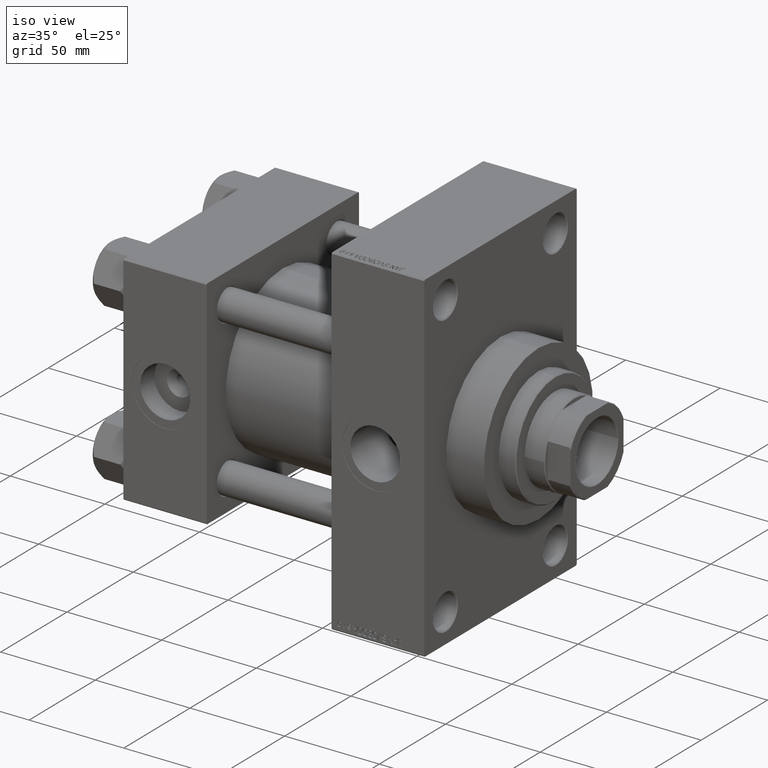
[diagram: clean part render]
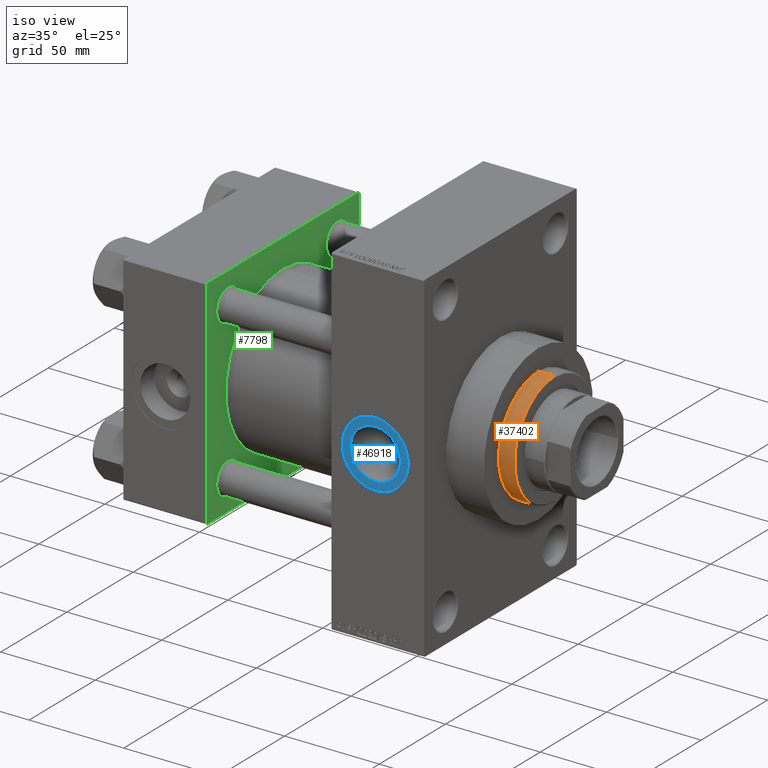
[diagram: same view with three faces highlighted in distinct colors, each labeled with its STEP entity id]
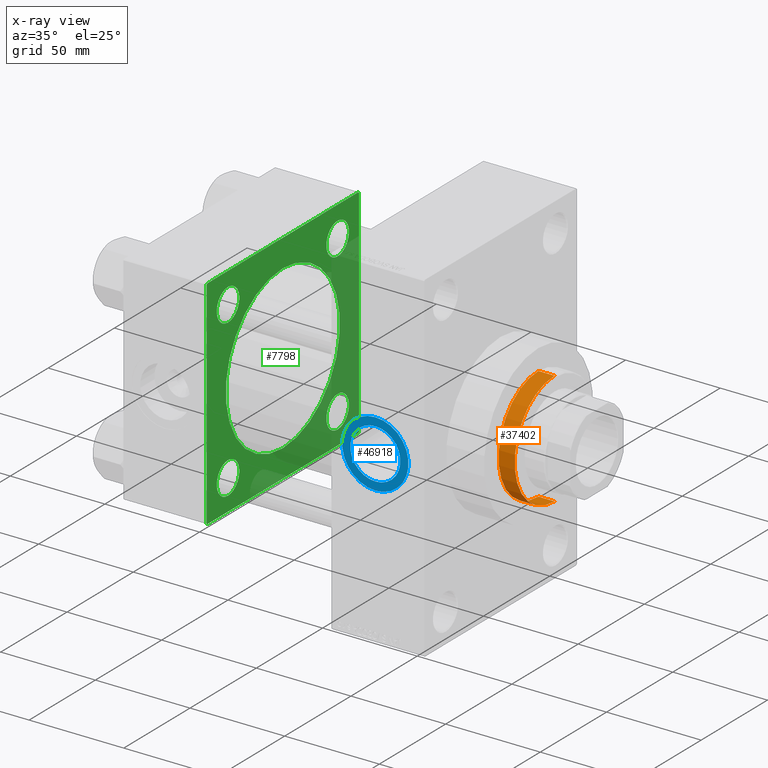
[diagram: x-ray of the same camera — body ghosted, the three highlighted faces saturated]
A machine part, iso view with three faces highlighted in distinct colors.
The next image is the same camera in x-ray (body ghosted, the three faces saturated) — at least one of them is partly hidden behind the body in this view.
Their STEP definitions:

[orange] entity #37402 — the highlighted cylindrical surface (partial cylindrical patch) has radius 30 mm, axis along (-1, 0, 0).
#633 = EDGE_LOOP ( 'NONE', ( #4686, #29233, #36088, #29015 ) ) ;
#3009 = EDGE_CURVE ( 'NONE', #46008, #40179, #45389, .T. ) ;
#3633 = VERTEX_POINT ( 'NONE', #49063 ) ;
#4686 = ORIENTED_EDGE ( 'NONE', *, *, #48364, .T. ) ;
#9122 = CARTESIAN_POINT ( 'NONE',  ( 0.000000000000000000, 0.000000000000000000, 43.25999999999999801 ) ) ;
#10773 = DIRECTION ( 'NONE',  ( -0.000000000000000000, -0.000000000000000000, -1.000000000000000000 ) ) ;
#11825 = CARTESIAN_POINT ( 'NONE',  ( 30.00000000000000000, 3.673940397442059178E-15, 51.75999999999999091 ) ) ;
#12438 = CYLINDRICAL_SURFACE ( 'NONE', #43325, 30.00000000000000000 ) ;
#13996 = CIRCLE ( 'NONE', #25215, 30.00000000000000000 ) ;
#20670 = DIRECTION ( 'NONE',  ( 1.000000000000000000, 0.000000000000000000, 0.000000000000000000 ) ) ;
#22979 = LINE ( 'NONE', #38124, #29128 ) ;
#24452 = DIRECTION ( 'NONE',  ( 0.000000000000000000, 0.000000000000000000, 1.000000000000000000 ) ) ;
#25215 = AXIS2_PLACEMENT_3D ( 'NONE', #36712, #32175, #28890 ) ;
#25981 = CARTESIAN_POINT ( 'NONE',  ( -30.00000000000000000, 0.000000000000000000, 52.25999999999999801 ) ) ;
#26159 = EDGE_CURVE ( 'NONE', #45968, #3633, #22979, .T. ) ;
#26320 = EDGE_CURVE ( 'NONE', #3633, #40179, #30792, .T. ) ;
#28890 = DIRECTION ( 'NONE',  ( 1.000000000000000000, 0.000000000000000000, 0.000000000000000000 ) ) ;
#29015 = ORIENTED_EDGE ( 'NONE', *, *, #3009, .F. ) ;
#29128 = VECTOR ( 'NONE', #35069, 1000.000000000000000 ) ;
#29233 = ORIENTED_EDGE ( 'NONE', *, *, #26159, .T. ) ;
#30193 = VECTOR ( 'NONE', #30513, 1000.000000000000000 ) ;
#30513 = DIRECTION ( 'NONE',  ( -0.000000000000000000, -0.000000000000000000, -1.000000000000000000 ) ) ;
#30792 = CIRCLE ( 'NONE', #48487, 30.00000000000000000 ) ;
#32175 = DIRECTION ( 'NONE',  ( 0.000000000000000000, 0.000000000000000000, -1.000000000000000000 ) ) ;
#33318 = CARTESIAN_POINT ( 'NONE',  ( -30.00000000000000000, 0.000000000000000000, 43.25999999999999801 ) ) ;
#34482 = CARTESIAN_POINT ( 'NONE',  ( -30.00000000000000000, 0.000000000000000000, 51.75999999999999091 ) ) ;
#35069 = DIRECTION ( 'NONE',  ( -0.000000000000000000, -0.000000000000000000, -1.000000000000000000 ) ) ;
#36088 = ORIENTED_EDGE ( 'NONE', *, *, #26320, .T. ) ;
#36712 = CARTESIAN_POINT ( 'NONE',  ( 0.000000000000000000, 0.000000000000000000, 51.75999999999999091 ) ) ;
#37402 = ADVANCED_FACE ( 'NONE', ( #45506 ), #12438, .T. ) ;
#37463 = DIRECTION ( 'NONE',  ( -1.000000000000000000, 0.000000000000000000, 0.000000000000000000 ) ) ;
#38124 = CARTESIAN_POINT ( 'NONE',  ( 30.00000000000000000, 3.673940397442059178E-15, 52.25999999999999801 ) ) ;
#40179 = VERTEX_POINT ( 'NONE', #33318 ) ;
#43147 = CARTESIAN_POINT ( 'NONE',  ( 0.000000000000000000, 0.000000000000000000, 52.25999999999999801 ) ) ;
#43325 = AXIS2_PLACEMENT_3D ( 'NONE', #43147, #10773, #37463 ) ;
#45389 = LINE ( 'NONE', #25981, #30193 ) ;
#45506 = FACE_OUTER_BOUND ( 'NONE', #633, .T. ) ;
#45968 = VERTEX_POINT ( 'NONE', #11825 ) ;
#46008 = VERTEX_POINT ( 'NONE', #34482 ) ;
#48364 = EDGE_CURVE ( 'NONE', #46008, #45968, #13996, .T. ) ;
#48487 = AXIS2_PLACEMENT_3D ( 'NONE', #9122, #24452, #20670 ) ;
#49063 = CARTESIAN_POINT ( 'NONE',  ( 30.00000000000000000, 3.673940397442059178E-15, 43.25999999999999801 ) ) ;

[blue] entity #46918 — the highlighted planar face has unit normal (0, -1, -0).
#479 = EDGE_CURVE ( 'NONE', #11952, #36464, #1618, .T. ) ;
#1618 = CIRCLE ( 'NONE', #24914, 13.22000000000001307 ) ;
#2484 = EDGE_LOOP ( 'NONE', ( #33879, #6359 ) ) ;
#3055 = PLANE ( 'NONE',  #22780 ) ;
#3324 = AXIS2_PLACEMENT_3D ( 'NONE', #14110, #44824, #41056 ) ;
#3996 = VERTEX_POINT ( 'NONE', #42197 ) ;
#6359 = ORIENTED_EDGE ( 'NONE', *, *, #40223, .T. ) ;
#11041 = EDGE_LOOP ( 'NONE', ( #43562, #27768 ) ) ;
#11702 = DIRECTION ( 'NONE',  ( 0.000000000000000000, 0.000000000000000000, -1.000000000000000000 ) ) ;
#11952 = VERTEX_POINT ( 'NONE', #13921 ) ;
#12784 = CARTESIAN_POINT ( 'NONE',  ( 133.0000000000000000, -57.30000000000002558, 1.734723475976770117E-17 ) ) ;
#13921 = CARTESIAN_POINT ( 'NONE',  ( 133.0000000000000000, -57.30000000000002558, -13.22000000000001307 ) ) ;
#14110 = CARTESIAN_POINT ( 'NONE',  ( 133.0000000000000000, -57.30000000000002558, 1.734723475976807403E-17 ) ) ;
#15575 = DIRECTION ( 'NONE',  ( 0.000000000000000000, 0.000000000000000000, -1.000000000000000000 ) ) ;
#17198 = DIRECTION ( 'NONE',  ( 0.000000000000000000, -1.000000000000000000, -8.673617379884036705E-17 ) ) ;
#21667 = AXIS2_PLACEMENT_3D ( 'NONE', #46195, #37655, #11702 ) ;
#22217 = EDGE_CURVE ( 'NONE', #24292, #3996, #33887, .T. ) ;
#22308 = CARTESIAN_POINT ( 'NONE',  ( 133.0000000000000000, -57.30000000000002558, 13.22000000000001307 ) ) ;
#22404 = CARTESIAN_POINT ( 'NONE',  ( 133.0000000000000000, -57.30000000000002558, 1.734723475976807403E-17 ) ) ;
#22780 = AXIS2_PLACEMENT_3D ( 'NONE', #22404, #38045, #37799 ) ;
#24292 = VERTEX_POINT ( 'NONE', #41507 ) ;
#24914 = AXIS2_PLACEMENT_3D ( 'NONE', #12784, #31897, #15575 ) ;
#26518 = AXIS2_PLACEMENT_3D ( 'NONE', #48446, #17198, #39889 ) ;
#27768 = ORIENTED_EDGE ( 'NONE', *, *, #38807, .F. ) ;
#31897 = DIRECTION ( 'NONE',  ( 0.000000000000000000, -1.000000000000000000, -8.673617379884036705E-17 ) ) ;
#33249 = FACE_OUTER_BOUND ( 'NONE', #2484, .T. ) ;
#33879 = ORIENTED_EDGE ( 'NONE', *, *, #22217, .T. ) ;
#33887 = CIRCLE ( 'NONE', #3324, 17.50000000000002132 ) ;
#36464 = VERTEX_POINT ( 'NONE', #22308 ) ;
#37298 = FACE_BOUND ( 'NONE', #11041, .T. ) ;
#37655 = DIRECTION ( 'NONE',  ( 0.000000000000000000, -1.000000000000000000, -8.673617379884036705E-17 ) ) ;
#37799 = DIRECTION ( 'NONE',  ( 0.000000000000000000, 8.673617379884036705E-17, -1.000000000000000000 ) ) ;
#38045 = DIRECTION ( 'NONE',  ( 0.000000000000000000, -1.000000000000000000, -8.673617379884036705E-17 ) ) ;
#38807 = EDGE_CURVE ( 'NONE', #36464, #11952, #45812, .T. ) ;
#39889 = DIRECTION ( 'NONE',  ( 0.000000000000000000, 0.000000000000000000, -1.000000000000000000 ) ) ;
#40223 = EDGE_CURVE ( 'NONE', #3996, #24292, #48253, .T. ) ;
#41056 = DIRECTION ( 'NONE',  ( 0.000000000000000000, 0.000000000000000000, -1.000000000000000000 ) ) ;
#41507 = CARTESIAN_POINT ( 'NONE',  ( 133.0000000000000000, -57.30000000000002558, -17.50000000000002132 ) ) ;
#42197 = CARTESIAN_POINT ( 'NONE',  ( 133.0000000000000000, -57.30000000000002558, 17.50000000000002132 ) ) ;
#43562 = ORIENTED_EDGE ( 'NONE', *, *, #479, .F. ) ;
#44824 = DIRECTION ( 'NONE',  ( 0.000000000000000000, -1.000000000000000000, -8.673617379884036705E-17 ) ) ;
#45812 = CIRCLE ( 'NONE', #21667, 13.22000000000001307 ) ;
#46195 = CARTESIAN_POINT ( 'NONE',  ( 133.0000000000000000, -57.30000000000002558, 1.734723475976770117E-17 ) ) ;
#46918 = ADVANCED_FACE ( 'NONE', ( #37298, #33249 ), #3055, .T. ) ;
#48253 = CIRCLE ( 'NONE', #26518, 17.50000000000002132 ) ;
#48446 = CARTESIAN_POINT ( 'NONE',  ( 133.0000000000000000, -57.30000000000002558, 1.734723475976807403E-17 ) ) ;

[green] entity #7798 — the highlighted planar face has unit normal (-1, 0, 0).
#8 = CIRCLE ( 'NONE', #33655, 8.500000000000090594 ) ;
#181 = CIRCLE ( 'NONE', #28265, 43.00000000000000000 ) ;
#626 = AXIS2_PLACEMENT_3D ( 'NONE', #15870, #8805, #12106 ) ;
#951 = CARTESIAN_POINT ( 'NONE',  ( 44.00000000000000000, -41.34999999999998721, 41.35000000000000853 ) ) ;
#1450 = DIRECTION ( 'NONE',  ( 0.000000000000000000, -1.000000000000000000, -1.206764157201257045E-16 ) ) ;
#1844 = AXIS2_PLACEMENT_3D ( 'NONE', #17389, #20412, #44096 ) ;
#1970 = LINE ( 'NONE', #33669, #10412 ) ;
#2400 = PLANE ( 'NONE',  #19778 ) ;
#2408 = CARTESIAN_POINT ( 'NONE',  ( 44.00000000000000000, -41.34999999999998721, 32.84999999999992326 ) ) ;
#2672 = DIRECTION ( 'NONE',  ( 0.000000000000000000, 0.000000000000000000, 1.000000000000000000 ) ) ;
#2808 = CARTESIAN_POINT ( 'NONE',  ( 44.00000000000000000, 57.00000000000000711, 57.50000000000000711 ) ) ;
#2844 = LINE ( 'NONE', #10393, #31427 ) ;
#2922 = ORIENTED_EDGE ( 'NONE', *, *, #21942, .T. ) ;
#3205 = CARTESIAN_POINT ( 'NONE',  ( 44.00000000000000000, 41.34999999999999432, -41.35000000000000142 ) ) ;
#3381 = VERTEX_POINT ( 'NONE', #7816 ) ;
#4366 = VERTEX_POINT ( 'NONE', #32192 ) ;
#5100 = VERTEX_POINT ( 'NONE', #15253 ) ;
#5718 = EDGE_LOOP ( 'NONE', ( #15227, #41743 ) ) ;
#6239 = ORIENTED_EDGE ( 'NONE', *, *, #36899, .F. ) ;
#6440 = DIRECTION ( 'NONE',  ( -0.000000000000000000, -0.7071067811865376918, -0.7071067811865573427 ) ) ;
#6488 = ORIENTED_EDGE ( 'NONE', *, *, #38596, .T. ) ;
#6546 = CARTESIAN_POINT ( 'NONE',  ( 44.00000000000000000, 57.49999999999999289, -57.00000000000000711 ) ) ;
#6671 = EDGE_LOOP ( 'NONE', ( #32500, #36494 ) ) ;
#6707 = ORIENTED_EDGE ( 'NONE', *, *, #24727, .T. ) ;
#7330 = DIRECTION ( 'NONE',  ( 0.000000000000000000, 0.000000000000000000, 1.000000000000000000 ) ) ;
#7798 = ADVANCED_FACE ( 'NONE', ( #30252, #9947, #48723, #36880, #26456, #48476 ), #2400, .F. ) ;
#7816 = CARTESIAN_POINT ( 'NONE',  ( 44.00000000000000000, -41.34999999999998721, -32.84999999999992326 ) ) ;
#8576 = VERTEX_POINT ( 'NONE', #33352 ) ;
#8615 = VERTEX_POINT ( 'NONE', #11204 ) ;
#8805 = DIRECTION ( 'NONE',  ( -1.000000000000000000, 0.000000000000000000, -0.000000000000000000 ) ) ;
#8840 = VERTEX_POINT ( 'NONE', #41202 ) ;
#9306 = CARTESIAN_POINT ( 'NONE',  ( 44.00000000000000000, 41.34999999999999432, -32.84999999999991616 ) ) ;
#9725 = VERTEX_POINT ( 'NONE', #26178 ) ;
#9726 = EDGE_LOOP ( 'NONE', ( #11169, #26100 ) ) ;
#9916 = CARTESIAN_POINT ( 'NONE',  ( 44.00000000000000000, -57.50000000000000711, -57.00000000000000711 ) ) ;
#9947 = FACE_BOUND ( 'NONE', #6671, .T. ) ;
#10366 = LINE ( 'NONE', #14394, #47387 ) ;
#10393 = CARTESIAN_POINT ( 'NONE',  ( 44.00000000000000000, -57.50000000000000711, 57.49999999999999289 ) ) ;
#10412 = VECTOR ( 'NONE', #21571, 1000.000000000000000 ) ;
#10509 = CIRCLE ( 'NONE', #26535, 8.500000000000090594 ) ;
#10811 = DIRECTION ( 'NONE',  ( 0.000000000000000000, 0.7071067811865474617, -0.7071067811865474617 ) ) ;
#10823 = EDGE_CURVE ( 'NONE', #13776, #33130, #23916, .T. ) ;
#10976 = EDGE_LOOP ( 'NONE', ( #45476, #32490, #6239, #6707, #45452, #6488, #2922, #36998 ) ) ;
#11108 = DIRECTION ( 'NONE',  ( -0.000000000000000000, 0.7071067811865376918, 0.7071067811865573427 ) ) ;
#11169 = ORIENTED_EDGE ( 'NONE', *, *, #35596, .T. ) ;
#11204 = CARTESIAN_POINT ( 'NONE',  ( 44.00000000000000000, 2.663896022368408223E-15, -43.00000000000000000 ) ) ;
#12106 = DIRECTION ( 'NONE',  ( 0.000000000000000000, 0.000000000000000000, 1.000000000000000000 ) ) ;
#12879 = AXIS2_PLACEMENT_3D ( 'NONE', #36643, #37160, #2672 ) ;
#12911 = DIRECTION ( 'NONE',  ( -1.000000000000000000, 0.000000000000000000, -0.000000000000000000 ) ) ;
#12934 = AXIS2_PLACEMENT_3D ( 'NONE', #30214, #41822, #7330 ) ;
#13485 = CARTESIAN_POINT ( 'NONE',  ( 44.00000000000000000, -57.50000000000000711, 57.00000000000000711 ) ) ;
#13521 = CARTESIAN_POINT ( 'NONE',  ( 44.00000000000000000, -41.34999999999998721, -49.85000000000010090 ) ) ;
#13726 = DIRECTION ( 'NONE',  ( 1.000000000000000000, -0.000000000000000000, 0.000000000000000000 ) ) ;
#13776 = VERTEX_POINT ( 'NONE', #24287 ) ;
#14394 = CARTESIAN_POINT ( 'NONE',  ( 44.00000000000000000, 57.49999999999999289, -57.00000000000000711 ) ) ;
#14464 = DIRECTION ( 'NONE',  ( -1.000000000000000000, 0.000000000000000000, -0.000000000000000000 ) ) ;
#14776 = DIRECTION ( 'NONE',  ( -1.000000000000000000, 0.000000000000000000, -0.000000000000000000 ) ) ;
#15227 = ORIENTED_EDGE ( 'NONE', *, *, #39769, .F. ) ;
#15253 = CARTESIAN_POINT ( 'NONE',  ( 44.00000000000000000, 57.49999999999999289, 57.00000000000003553 ) ) ;
#15870 = CARTESIAN_POINT ( 'NONE',  ( 44.00000000000000000, 41.34999999999999432, 41.35000000000000142 ) ) ;
#16212 = VERTEX_POINT ( 'NONE', #13521 ) ;
#16609 = EDGE_LOOP ( 'NONE', ( #17590, #34986 ) ) ;
#16805 = EDGE_CURVE ( 'NONE', #3381, #16212, #10509, .T. ) ;
#17111 = LINE ( 'NONE', #19899, #41728 ) ;
#17389 = CARTESIAN_POINT ( 'NONE',  ( 44.00000000000000000, 41.34999999999999432, -41.35000000000000142 ) ) ;
#17590 = ORIENTED_EDGE ( 'NONE', *, *, #41324, .T. ) ;
#17734 = DIRECTION ( 'NONE',  ( -0.000000000000000000, 0.000000000000000000, 1.000000000000000000 ) ) ;
#17940 = CARTESIAN_POINT ( 'NONE',  ( 44.00000000000000000, -41.34999999999998721, 49.85000000000010090 ) ) ;
#18077 = EDGE_CURVE ( 'NONE', #45522, #45217, #44318, .T. ) ;
#18217 = CARTESIAN_POINT ( 'NONE',  ( 44.00000000000000000, 41.34999999999999432, 41.35000000000000142 ) ) ;
#18716 = DIRECTION ( 'NONE',  ( 0.000000000000000000, 0.000000000000000000, 1.000000000000000000 ) ) ;
#19614 = CIRCLE ( 'NONE', #1844, 8.500000000000090594 ) ;
#19778 = AXIS2_PLACEMENT_3D ( 'NONE', #38081, #40169, #17734 ) ;
#19899 = CARTESIAN_POINT ( 'NONE',  ( 44.00000000000000000, 57.49999999999999289, 57.50000000000000711 ) ) ;
#20412 = DIRECTION ( 'NONE',  ( -1.000000000000000000, 0.000000000000000000, -0.000000000000000000 ) ) ;
#20443 = DIRECTION ( 'NONE',  ( 0.000000000000000000, 0.000000000000000000, 1.000000000000000000 ) ) ;
#20940 = AXIS2_PLACEMENT_3D ( 'NONE', #18217, #14464, #18716 ) ;
#21159 = CARTESIAN_POINT ( 'NONE',  ( 44.00000000000000000, -2.602085213965210642E-15, 43.00000000000000000 ) ) ;
#21195 = EDGE_CURVE ( 'NONE', #4366, #8840, #32644, .T. ) ;
#21571 = DIRECTION ( 'NONE',  ( 0.000000000000000000, -1.000000000000000000, -1.206764157201257045E-16 ) ) ;
#21942 = EDGE_CURVE ( 'NONE', #49432, #49095, #2844, .T. ) ;
#22162 = CARTESIAN_POINT ( 'NONE',  ( 44.00000000000000000, 41.34999999999999432, 32.84999999999991616 ) ) ;
#22405 = LINE ( 'NONE', #2808, #31499 ) ;
#23916 = CIRCLE ( 'NONE', #626, 8.500000000000090594 ) ;
#24287 = CARTESIAN_POINT ( 'NONE',  ( 44.00000000000000000, 41.34999999999999432, 49.85000000000009379 ) ) ;
#24727 = EDGE_CURVE ( 'NONE', #5100, #9725, #22405, .T. ) ;
#24968 = CIRCLE ( 'NONE', #20940, 8.500000000000090594 ) ;
#25209 = DIRECTION ( 'NONE',  ( 0.000000000000000000, 0.000000000000000000, 1.000000000000000000 ) ) ;
#25733 = CIRCLE ( 'NONE', #43424, 43.00000000000000000 ) ;
#26100 = ORIENTED_EDGE ( 'NONE', *, *, #18077, .T. ) ;
#26178 = CARTESIAN_POINT ( 'NONE',  ( 44.00000000000000000, 57.00000000000000711, 57.50000000000000711 ) ) ;
#26456 = FACE_BOUND ( 'NONE', #5718, .T. ) ;
#26535 = AXIS2_PLACEMENT_3D ( 'NONE', #36311, #12911, #25209 ) ;
#26937 = VERTEX_POINT ( 'NONE', #43625 ) ;
#27202 = AXIS2_PLACEMENT_3D ( 'NONE', #3205, #14776, #45246 ) ;
#28063 = VERTEX_POINT ( 'NONE', #9306 ) ;
#28265 = AXIS2_PLACEMENT_3D ( 'NONE', #44185, #13726, #33095 ) ;
#28783 = ORIENTED_EDGE ( 'NONE', *, *, #16805, .T. ) ;
#30214 = CARTESIAN_POINT ( 'NONE',  ( 44.00000000000000000, -41.34999999999998721, 41.35000000000000853 ) ) ;
#30252 = FACE_BOUND ( 'NONE', #34324, .T. ) ;
#31427 = VECTOR ( 'NONE', #40361, 1000.000000000000000 ) ;
#31499 = VECTOR ( 'NONE', #49624, 1000.000000000000114 ) ;
#31883 = DIRECTION ( 'NONE',  ( 0.000000000000000000, 0.000000000000000000, 1.000000000000000000 ) ) ;
#32192 = CARTESIAN_POINT ( 'NONE',  ( 44.00000000000000000, 57.00000000000002132, -57.49999999999999289 ) ) ;
#32473 = DIRECTION ( 'NONE',  ( 0.000000000000000000, 0.000000000000000000, -1.000000000000000000 ) ) ;
#32490 = ORIENTED_EDGE ( 'NONE', *, *, #35096, .T. ) ;
#32500 = ORIENTED_EDGE ( 'NONE', *, *, #49388, .T. ) ;
#32644 = LINE ( 'NONE', #35439, #34637 ) ;
#33000 = CARTESIAN_POINT ( 'NONE',  ( 44.00000000000000000, -57.50000000000000711, 57.00000000000000711 ) ) ;
#33095 = DIRECTION ( 'NONE',  ( 0.000000000000000000, 0.000000000000000000, 1.000000000000000000 ) ) ;
#33130 = VERTEX_POINT ( 'NONE', #22162 ) ;
#33352 = CARTESIAN_POINT ( 'NONE',  ( 44.00000000000000000, 41.34999999999999432, -49.85000000000009379 ) ) ;
#33655 = AXIS2_PLACEMENT_3D ( 'NONE', #951, #39957, #31883 ) ;
#33669 = CARTESIAN_POINT ( 'NONE',  ( 44.00000000000000000, 57.49999999999999289, 57.50000000000000711 ) ) ;
#34324 = EDGE_LOOP ( 'NONE', ( #41069, #28783 ) ) ;
#34637 = VECTOR ( 'NONE', #1450, 1000.000000000000000 ) ;
#34986 = ORIENTED_EDGE ( 'NONE', *, *, #10823, .T. ) ;
#35096 = EDGE_CURVE ( 'NONE', #4366, #36105, #10366, .T. ) ;
#35370 = VECTOR ( 'NONE', #6440, 1000.000000000000114 ) ;
#35439 = CARTESIAN_POINT ( 'NONE',  ( 44.00000000000000000, 57.49999999999999289, -57.49999999999999289 ) ) ;
#35596 = EDGE_CURVE ( 'NONE', #45217, #45522, #8, .T. ) ;
#36105 = VERTEX_POINT ( 'NONE', #6546 ) ;
#36195 = CIRCLE ( 'NONE', #12879, 8.500000000000090594 ) ;
#36311 = CARTESIAN_POINT ( 'NONE',  ( 44.00000000000000000, -41.34999999999998721, -41.35000000000000853 ) ) ;
#36434 = EDGE_CURVE ( 'NONE', #28063, #8576, #48945, .T. ) ;
#36494 = ORIENTED_EDGE ( 'NONE', *, *, #36434, .T. ) ;
#36643 = CARTESIAN_POINT ( 'NONE',  ( 44.00000000000000000, -41.34999999999998721, -41.35000000000000853 ) ) ;
#36880 = FACE_BOUND ( 'NONE', #16609, .T. ) ;
#36899 = EDGE_CURVE ( 'NONE', #5100, #36105, #17111, .T. ) ;
#36998 = ORIENTED_EDGE ( 'NONE', *, *, #41110, .T. ) ;
#37160 = DIRECTION ( 'NONE',  ( -1.000000000000000000, 0.000000000000000000, -0.000000000000000000 ) ) ;
#38081 = CARTESIAN_POINT ( 'NONE',  ( 44.00000000000000000, 0.000000000000000000, 0.000000000000000000 ) ) ;
#38236 = EDGE_CURVE ( 'NONE', #9725, #26937, #1970, .T. ) ;
#38596 = EDGE_CURVE ( 'NONE', #26937, #49432, #43945, .T. ) ;
#38671 = VECTOR ( 'NONE', #10811, 1000.000000000000114 ) ;
#39537 = EDGE_CURVE ( 'NONE', #16212, #3381, #36195, .T. ) ;
#39769 = EDGE_CURVE ( 'NONE', #49366, #8615, #25733, .T. ) ;
#39957 = DIRECTION ( 'NONE',  ( -1.000000000000000000, 0.000000000000000000, -0.000000000000000000 ) ) ;
#40169 = DIRECTION ( 'NONE',  ( -1.000000000000000000, 0.000000000000000000, -0.000000000000000000 ) ) ;
#40361 = DIRECTION ( 'NONE',  ( 0.000000000000000000, 0.000000000000000000, -1.000000000000000000 ) ) ;
#41032 = LINE ( 'NONE', #49083, #38671 ) ;
#41069 = ORIENTED_EDGE ( 'NONE', *, *, #39537, .T. ) ;
#41110 = EDGE_CURVE ( 'NONE', #49095, #8840, #41032, .T. ) ;
#41202 = CARTESIAN_POINT ( 'NONE',  ( 44.00000000000000000, -57.00000000000000711, -57.50000000000000711 ) ) ;
#41324 = EDGE_CURVE ( 'NONE', #33130, #13776, #24968, .T. ) ;
#41728 = VECTOR ( 'NONE', #32473, 1000.000000000000000 ) ;
#41743 = ORIENTED_EDGE ( 'NONE', *, *, #44379, .F. ) ;
#41822 = DIRECTION ( 'NONE',  ( -1.000000000000000000, 0.000000000000000000, -0.000000000000000000 ) ) ;
#43424 = AXIS2_PLACEMENT_3D ( 'NONE', #44126, #43877, #20443 ) ;
#43625 = CARTESIAN_POINT ( 'NONE',  ( 44.00000000000000000, -57.00000000000003553, 57.49999999999999289 ) ) ;
#43877 = DIRECTION ( 'NONE',  ( 1.000000000000000000, -0.000000000000000000, 0.000000000000000000 ) ) ;
#43945 = LINE ( 'NONE', #13485, #35370 ) ;
#44096 = DIRECTION ( 'NONE',  ( 0.000000000000000000, 0.000000000000000000, 1.000000000000000000 ) ) ;
#44126 = CARTESIAN_POINT ( 'NONE',  ( 44.00000000000000000, -2.602085213965210642E-15, 0.000000000000000000 ) ) ;
#44185 = CARTESIAN_POINT ( 'NONE',  ( 44.00000000000000000, -2.602085213965210642E-15, 0.000000000000000000 ) ) ;
#44318 = CIRCLE ( 'NONE', #12934, 8.500000000000090594 ) ;
#44379 = EDGE_CURVE ( 'NONE', #8615, #49366, #181, .T. ) ;
#45217 = VERTEX_POINT ( 'NONE', #2408 ) ;
#45246 = DIRECTION ( 'NONE',  ( 0.000000000000000000, 0.000000000000000000, 1.000000000000000000 ) ) ;
#45452 = ORIENTED_EDGE ( 'NONE', *, *, #38236, .T. ) ;
#45476 = ORIENTED_EDGE ( 'NONE', *, *, #21195, .F. ) ;
#45522 = VERTEX_POINT ( 'NONE', #17940 ) ;
#47387 = VECTOR ( 'NONE', #11108, 1000.000000000000114 ) ;
#48476 = FACE_OUTER_BOUND ( 'NONE', #10976, .T. ) ;
#48723 = FACE_BOUND ( 'NONE', #9726, .T. ) ;
#48945 = CIRCLE ( 'NONE', #27202, 8.500000000000090594 ) ;
#49083 = CARTESIAN_POINT ( 'NONE',  ( 44.00000000000000000, -57.00000000000000711, -57.50000000000000711 ) ) ;
#49095 = VERTEX_POINT ( 'NONE', #9916 ) ;
#49366 = VERTEX_POINT ( 'NONE', #21159 ) ;
#49388 = EDGE_CURVE ( 'NONE', #8576, #28063, #19614, .T. ) ;
#49432 = VERTEX_POINT ( 'NONE', #33000 ) ;
#49624 = DIRECTION ( 'NONE',  ( 0.000000000000000000, -0.7071067811865573427, 0.7071067811865376918 ) ) ;